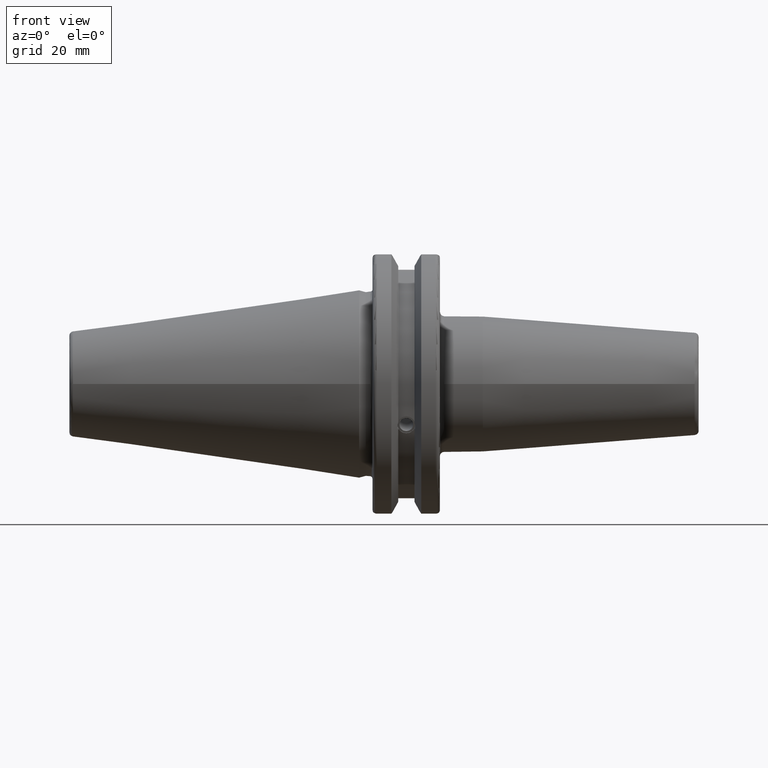
[diagram: clean part render]
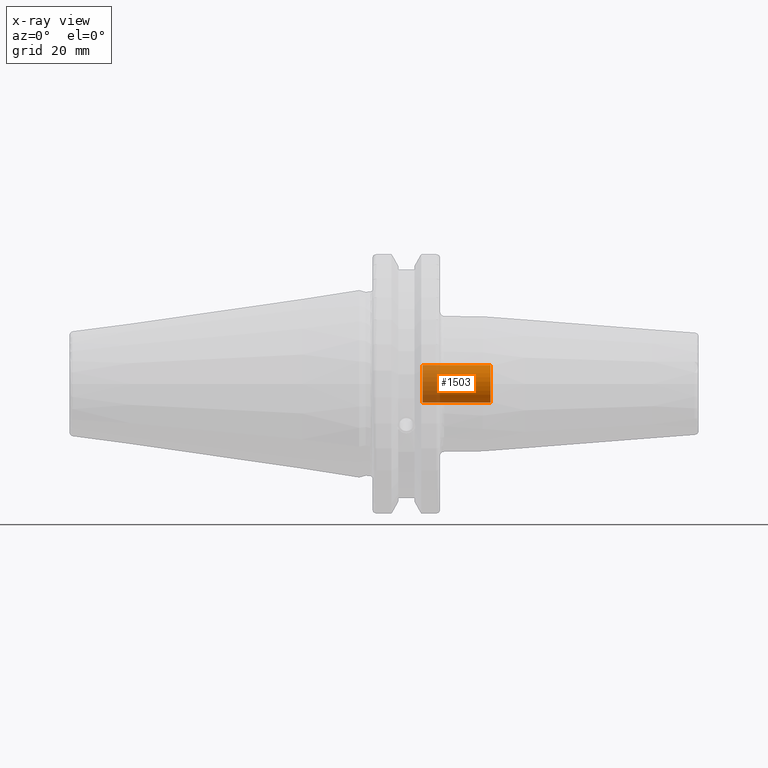
[diagram: x-ray — body ghosted, one internal face saturated and labeled with its STEP entity id]
A machine part, front view, then the same camera in x-ray: the body is ghosted and one INTERNAL B-rep face — a face not visible from any outside direction — is saturated and labeled: STEP entity #1503.
In plain terms, the highlighted cylindrical surface (bore or boss wall) has radius 4.4587 mm, axis along (1, 0, 0).
Its self-contained STEP definition (entity closure, byte-faithful):
#81=CYLINDRICAL_SURFACE('',#1630,4.458734);
#121=LINE('',#2313,#215);
#215=VECTOR('',#1855,4.458734);
#370=FACE_OUTER_BOUND('',#460,.T.);
#460=EDGE_LOOP('',(#1063,#1064,#1065,#1066,#1067));
#570=CIRCLE('',#1631,4.458734);
#571=CIRCLE('',#1632,4.458734);
#572=CIRCLE('',#1633,4.458734);
#653=VERTEX_POINT('',#2310);
#654=VERTEX_POINT('',#2312);
#655=VERTEX_POINT('',#2314);
#813=EDGE_CURVE('',#653,#653,#570,.T.);
#814=EDGE_CURVE('',#653,#654,#121,.T.);
#815=EDGE_CURVE('',#655,#654,#571,.T.);
#816=EDGE_CURVE('',#654,#655,#572,.T.);
#1063=ORIENTED_EDGE('',*,*,#813,.F.);
#1064=ORIENTED_EDGE('',*,*,#814,.T.);
#1065=ORIENTED_EDGE('',*,*,#815,.F.);
#1066=ORIENTED_EDGE('',*,*,#816,.F.);
#1067=ORIENTED_EDGE('',*,*,#814,.F.);
#1503=ADVANCED_FACE('',(#370),#81,.F.);
#1630=AXIS2_PLACEMENT_3D('',#2309,#1851,#1852);
#1631=AXIS2_PLACEMENT_3D('',#2311,#1853,#1854);
#1632=AXIS2_PLACEMENT_3D('',#2315,#1856,#1857);
#1633=AXIS2_PLACEMENT_3D('',#2316,#1858,#1859);
#1851=DIRECTION('center_axis',(1.,0.,0.));
#1852=DIRECTION('ref_axis',(0.,0.,-1.));
#1853=DIRECTION('center_axis',(-1.,0.,0.));
#1854=DIRECTION('ref_axis',(0.,0.,-1.));
#1855=DIRECTION('',(-1.,0.,0.));
#1856=DIRECTION('center_axis',(1.,0.,0.));
#1857=DIRECTION('ref_axis',(0.,0.,-1.));
#1858=DIRECTION('center_axis',(1.,0.,0.));
#1859=DIRECTION('ref_axis',(0.,0.,-1.));
#2309=CARTESIAN_POINT('Origin',(-141.459652382535,0.,0.));
#2310=CARTESIAN_POINT('',(31.,-5.46037432134947E-16,4.458734));
#2311=CARTESIAN_POINT('Origin',(31.,0.,0.));
#2312=CARTESIAN_POINT('',(14.9765163523599,-5.46037432134947E-16,4.458734));
#2313=CARTESIAN_POINT('',(-141.459652382535,-5.46037432134947E-16,4.458734));
#2314=CARTESIAN_POINT('',(14.9765163523599,-5.46037432134947E-16,-4.458734));
#2315=CARTESIAN_POINT('Origin',(14.9765163523599,0.,0.));
#2316=CARTESIAN_POINT('Origin',(14.9765163523599,0.,0.));